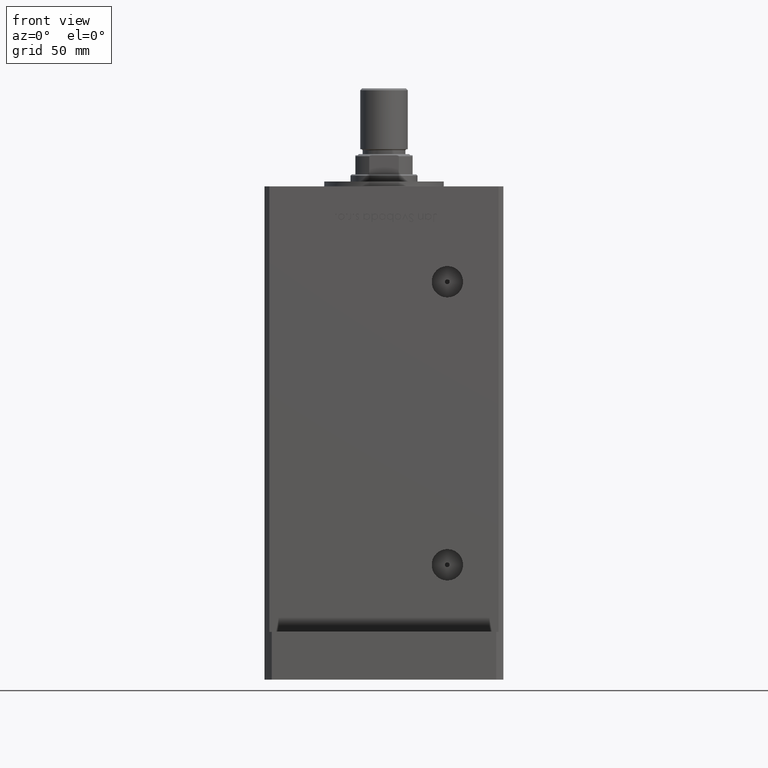
[diagram: clean part render]
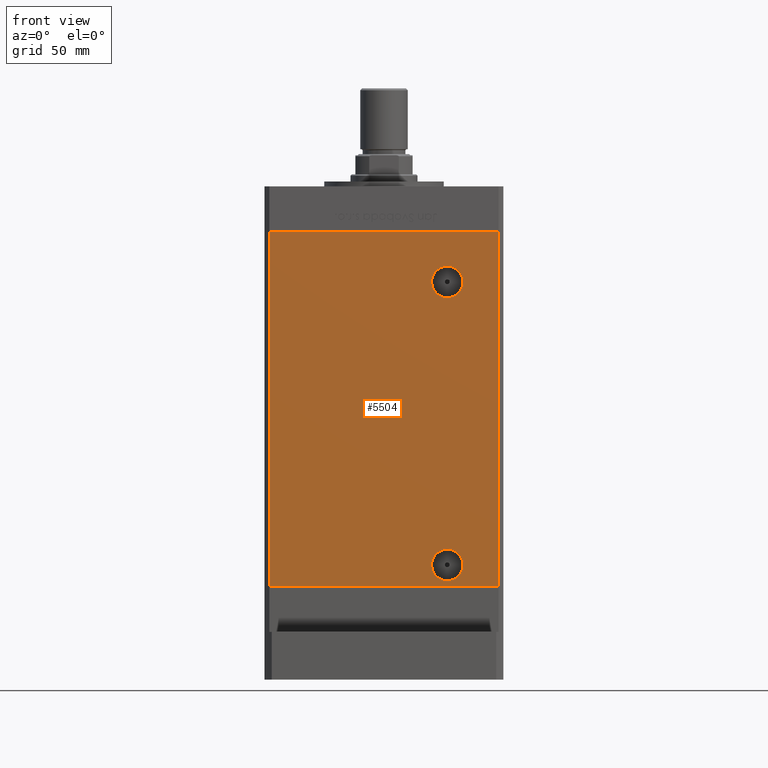
[diagram: same view with one face highlighted and labeled with its STEP entity id]
A machine part, front view. The second image highlights one B-rep face of the part: STEP entity #5504.
In plain terms, the highlighted planar face has unit normal (0, 1, 0).
Its self-contained STEP definition (entity closure, byte-faithful):
#761 = ORIENTED_EDGE ( 'NONE', *, *, #9896, .T. ) ;
#1785 = AXIS2_PLACEMENT_3D ( 'NONE', #18837, #27865, #19376 ) ;
#1810 = EDGE_LOOP ( 'NONE', ( #17520, #33374 ) ) ;
#2127 = PLANE ( 'NONE',  #1785 ) ;
#2296 = DIRECTION ( 'NONE',  ( 1.000000000000000000, 0.000000000000000000, 0.000000000000000000 ) ) ;
#2946 = FACE_BOUND ( 'NONE', #1810, .T. ) ;
#3133 = VERTEX_POINT ( 'NONE', #51690 ) ;
#3616 = EDGE_LOOP ( 'NONE', ( #44204, #31315, #32306, #761 ) ) ;
#3749 = EDGE_CURVE ( 'NONE', #16243, #21045, #19541, .T. ) ;
#4360 = DIRECTION ( 'NONE',  ( 1.000000000000000000, 0.000000000000000000, 0.000000000000000000 ) ) ;
#5394 = CARTESIAN_POINT ( 'NONE',  ( -47.99999999999998579, -43.50000000000000000, 0.000000000000000000 ) ) ;
#5504 = ADVANCED_FACE ( 'NONE', ( #7048, #6780, #2946 ), #2127, .F. ) ;
#6665 = CARTESIAN_POINT ( 'NONE',  ( -47.99999999999998579, -43.50000000000000000, 0.000000000000000000 ) ) ;
#6780 = FACE_OUTER_BOUND ( 'NONE', #3616, .T. ) ;
#7048 = FACE_BOUND ( 'NONE', #11228, .T. ) ;
#8502 = AXIS2_PLACEMENT_3D ( 'NONE', #16956, #30062, #38274 ) ;
#9096 = CARTESIAN_POINT ( 'NONE',  ( 47.99999999999998579, -43.50000000000000000, 0.000000000000000000 ) ) ;
#9642 = DIRECTION ( 'NONE',  ( -0.000000000000000000, -0.000000000000000000, -1.000000000000000000 ) ) ;
#9750 = CARTESIAN_POINT ( 'NONE',  ( 26.49999999999998934, -43.50000000000000000, 9.000000000000007105 ) ) ;
#9896 = EDGE_CURVE ( 'NONE', #12947, #16243, #21967, .T. ) ;
#10372 = CARTESIAN_POINT ( 'NONE',  ( 47.99999999999998579, -43.50000000000000000, 148.5000000000000000 ) ) ;
#11145 = CIRCLE ( 'NONE', #18126, 6.579999999999988525 ) ;
#11228 = EDGE_LOOP ( 'NONE', ( #52350, #36991 ) ) ;
#12947 = VERTEX_POINT ( 'NONE', #15729 ) ;
#13378 = CARTESIAN_POINT ( 'NONE',  ( 26.49999999999998934, -43.50000000000000000, 2.420000000000013252 ) ) ;
#14451 = CIRCLE ( 'NONE', #18834, 6.579999999999994742 ) ;
#14586 = CARTESIAN_POINT ( 'NONE',  ( 26.49999999999997513, -43.50000000000000000, 120.9200000000000159 ) ) ;
#15729 = CARTESIAN_POINT ( 'NONE',  ( -47.99999999999998579, -43.50000000000000000, 148.5000000000000000 ) ) ;
#16243 = VERTEX_POINT ( 'NONE', #5394 ) ;
#16694 = LINE ( 'NONE', #20529, #34742 ) ;
#16956 = CARTESIAN_POINT ( 'NONE',  ( 26.49999999999997513, -43.50000000000000000, 127.5000000000000000 ) ) ;
#17520 = ORIENTED_EDGE ( 'NONE', *, *, #28288, .T. ) ;
#18126 = AXIS2_PLACEMENT_3D ( 'NONE', #30486, #18436, #38419 ) ;
#18436 = DIRECTION ( 'NONE',  ( -0.000000000000000000, 1.000000000000000000, -0.000000000000000000 ) ) ;
#18834 = AXIS2_PLACEMENT_3D ( 'NONE', #9750, #30282, #26436 ) ;
#18837 = CARTESIAN_POINT ( 'NONE',  ( -47.99999999999998579, -43.50000000000000000, 148.5000000000000000 ) ) ;
#19376 = DIRECTION ( 'NONE',  ( 0.000000000000000000, -0.000000000000000000, 1.000000000000000000 ) ) ;
#19541 = LINE ( 'NONE', #6665, #51574 ) ;
#20529 = CARTESIAN_POINT ( 'NONE',  ( -47.99999999999998579, -43.50000000000000000, 148.5000000000000000 ) ) ;
#20721 = EDGE_CURVE ( 'NONE', #53928, #21045, #47859, .T. ) ;
#21045 = VERTEX_POINT ( 'NONE', #9096 ) ;
#21406 = AXIS2_PLACEMENT_3D ( 'NONE', #36918, #53625, #32811 ) ;
#21967 = LINE ( 'NONE', #50711, #36916 ) ;
#23882 = EDGE_CURVE ( 'NONE', #34628, #41224, #14451, .T. ) ;
#26436 = DIRECTION ( 'NONE',  ( 0.000000000000000000, 0.000000000000000000, -1.000000000000000000 ) ) ;
#27055 = DIRECTION ( 'NONE',  ( -0.000000000000000000, -0.000000000000000000, -1.000000000000000000 ) ) ;
#27865 = DIRECTION ( 'NONE',  ( 0.000000000000000000, 1.000000000000000000, 0.000000000000000000 ) ) ;
#28288 = EDGE_CURVE ( 'NONE', #46650, #3133, #11145, .T. ) ;
#29373 = CIRCLE ( 'NONE', #21406, 6.579999999999994742 ) ;
#29788 = CARTESIAN_POINT ( 'NONE',  ( 26.49999999999998934, -43.50000000000000000, 15.58000000000000362 ) ) ;
#30062 = DIRECTION ( 'NONE',  ( -0.000000000000000000, 1.000000000000000000, -0.000000000000000000 ) ) ;
#30282 = DIRECTION ( 'NONE',  ( 0.000000000000000000, -1.000000000000000000, 0.000000000000000000 ) ) ;
#30486 = CARTESIAN_POINT ( 'NONE',  ( 26.49999999999997513, -43.50000000000000000, 127.5000000000000000 ) ) ;
#31315 = ORIENTED_EDGE ( 'NONE', *, *, #20721, .F. ) ;
#32306 = ORIENTED_EDGE ( 'NONE', *, *, #33847, .F. ) ;
#32811 = DIRECTION ( 'NONE',  ( 0.000000000000000000, 0.000000000000000000, -1.000000000000000000 ) ) ;
#33374 = ORIENTED_EDGE ( 'NONE', *, *, #52926, .T. ) ;
#33847 = EDGE_CURVE ( 'NONE', #12947, #53928, #16694, .T. ) ;
#34628 = VERTEX_POINT ( 'NONE', #13378 ) ;
#34742 = VECTOR ( 'NONE', #4360, 1000.000000000000000 ) ;
#36916 = VECTOR ( 'NONE', #9642, 1000.000000000000000 ) ;
#36918 = CARTESIAN_POINT ( 'NONE',  ( 26.49999999999998934, -43.50000000000000000, 9.000000000000007105 ) ) ;
#36991 = ORIENTED_EDGE ( 'NONE', *, *, #45995, .F. ) ;
#38274 = DIRECTION ( 'NONE',  ( 0.000000000000000000, 0.000000000000000000, -1.000000000000000000 ) ) ;
#38419 = DIRECTION ( 'NONE',  ( 0.000000000000000000, 0.000000000000000000, -1.000000000000000000 ) ) ;
#39731 = VECTOR ( 'NONE', #27055, 1000.000000000000000 ) ;
#39997 = CIRCLE ( 'NONE', #8502, 6.579999999999988525 ) ;
#41224 = VERTEX_POINT ( 'NONE', #29788 ) ;
#44204 = ORIENTED_EDGE ( 'NONE', *, *, #3749, .T. ) ;
#45853 = CARTESIAN_POINT ( 'NONE',  ( 47.99999999999998579, -43.50000000000000000, 148.5000000000000000 ) ) ;
#45995 = EDGE_CURVE ( 'NONE', #41224, #34628, #29373, .T. ) ;
#46650 = VERTEX_POINT ( 'NONE', #14586 ) ;
#47859 = LINE ( 'NONE', #10372, #39731 ) ;
#50711 = CARTESIAN_POINT ( 'NONE',  ( -47.99999999999998579, -43.50000000000000000, 148.5000000000000000 ) ) ;
#51574 = VECTOR ( 'NONE', #2296, 1000.000000000000000 ) ;
#51690 = CARTESIAN_POINT ( 'NONE',  ( 26.49999999999997513, -43.50000000000000000, 134.0800000000000125 ) ) ;
#52350 = ORIENTED_EDGE ( 'NONE', *, *, #23882, .F. ) ;
#52926 = EDGE_CURVE ( 'NONE', #3133, #46650, #39997, .T. ) ;
#53625 = DIRECTION ( 'NONE',  ( 0.000000000000000000, -1.000000000000000000, 0.000000000000000000 ) ) ;
#53928 = VERTEX_POINT ( 'NONE', #45853 ) ;